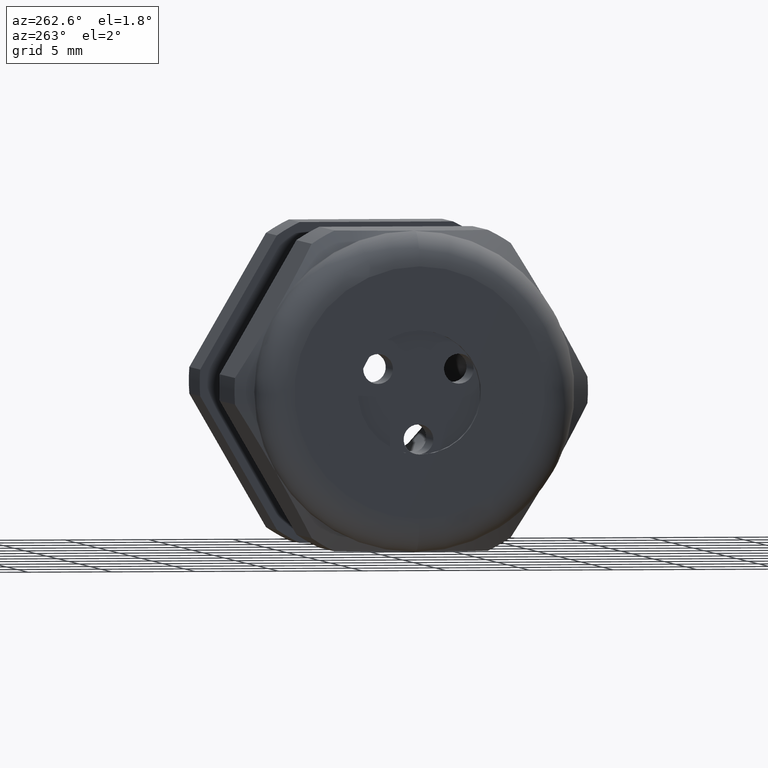
[diagram: clean part render]
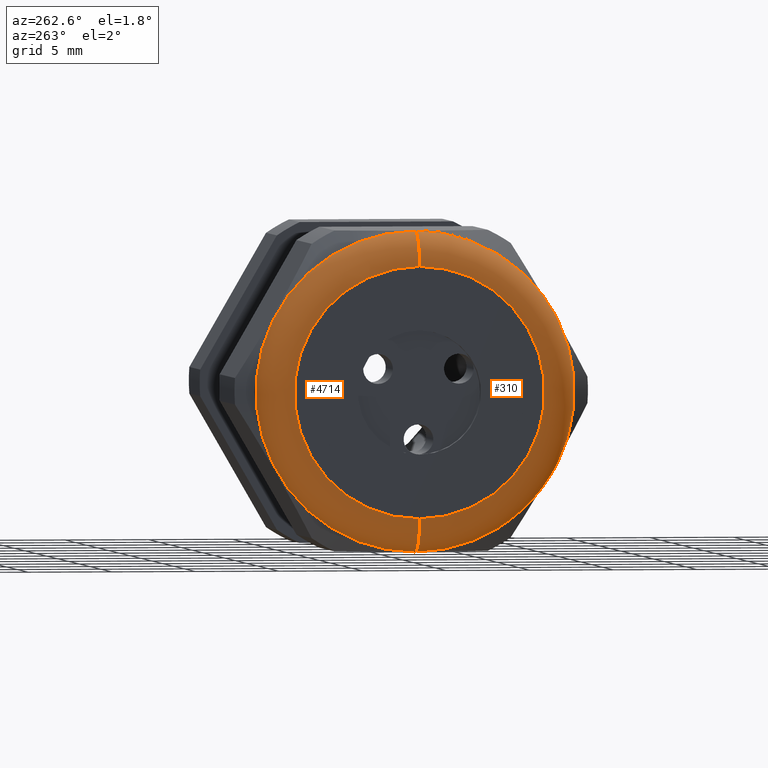
[diagram: same view with one multi-face feature highlighted, each face labeled with its STEP entity id]
A machine part, auxiliary view. The highlighted faces form ONE feature: a constant-radius fillet chain: 2 tangent blend faces with common blend radius 2.032 mm. The faces share edges in the B-rep.
Their STEP definitions:
[1] entity #310 (Torus):
#145 = EDGE_CURVE ( 'NONE', #4707, #4709, #1409, .T. ) ;
#162 = EDGE_CURVE ( 'NONE', #4786, #4739, #1515, .T. ) ;
#310 = ADVANCED_FACE ( 'NONE', ( #1741 ), #1740, .T. ) ;
#311 = ORIENTED_EDGE ( 'NONE', *, *, #4785, .F. ) ;
#312 = ORIENTED_EDGE ( 'NONE', *, *, #145, .F. ) ;
#313 = ORIENTED_EDGE ( 'NONE', *, *, #4750, .T. ) ;
#314 = ORIENTED_EDGE ( 'NONE', *, *, #162, .F. ) ;
#330 = EDGE_LOOP ( 'NONE', ( #311, #312, #313, #314 ) ) ;
#1409 = CIRCLE ( 'NONE', #1478, 0.3750000000000001100 ) ;
#1475 = DIRECTION ( 'NONE',  ( 0.0000000000000000000, 0.0000000000000000000, 1.000000000000000000 ) ) ;
#1476 = DIRECTION ( 'NONE',  ( 1.000000000000000000, 0.0000000000000000000, 0.0000000000000000000 ) ) ;
#1477 = CARTESIAN_POINT ( 'NONE',  ( -1.210000000000000000, 0.0000000000000000000, 0.0000000000000000000 ) ) ;
#1478 = AXIS2_PLACEMENT_3D ( 'NONE', #1477, #1476, #1475 ) ;
#1511 = DIRECTION ( 'NONE',  ( 0.0000000000000000000, 0.0000000000000000000, 1.000000000000000000 ) ) ;
#1512 = DIRECTION ( 'NONE',  ( -1.000000000000000000, 0.0000000000000000000, 0.0000000000000000000 ) ) ;
#1513 = CARTESIAN_POINT ( 'NONE',  ( -1.289999999999999800, 0.0000000000000000000, 0.0000000000000000000 ) ) ;
#1514 = AXIS2_PLACEMENT_3D ( 'NONE', #1513, #1512, #1511 ) ;
#1515 = CIRCLE ( 'NONE', #1514, 0.2950000000000001000 ) ;
#1737 = DIRECTION ( 'NONE',  ( 0.0000000000000000000, 0.0000000000000000000, 1.000000000000000000 ) ) ;
#1738 = DIRECTION ( 'NONE',  ( -1.000000000000000000, 0.0000000000000000000, 0.0000000000000000000 ) ) ;
#1739 = AXIS2_PLACEMENT_3D ( 'NONE', #1746, #1738, #1737 ) ;
#1740 = TOROIDAL_SURFACE ( 'NONE', #1739, 0.2950000000000001000, 0.08000000000000000200 ) ;
#1741 = FACE_OUTER_BOUND ( 'NONE', #330, .T. ) ;
#1746 = CARTESIAN_POINT ( 'NONE',  ( -1.210000000000000000, 0.0000000000000000000, 0.0000000000000000000 ) ) ;
#3739 = CARTESIAN_POINT ( 'NONE',  ( -1.210000000000000000, 0.0000000000000000000, -0.3750000000000001100 ) ) ;
#3745 = CARTESIAN_POINT ( 'NONE',  ( -1.210000000000000000, 4.592425496802576100E-017, 0.3750000000000001100 ) ) ;
#3784 = DIRECTION ( 'NONE',  ( 0.0000000000000000000, 0.0000000000000000000, -1.000000000000000000 ) ) ;
#3785 = DIRECTION ( 'NONE',  ( 0.0000000000000000000, -1.000000000000000000, 0.0000000000000000000 ) ) ;
#3786 = CARTESIAN_POINT ( 'NONE',  ( -1.210000000000000000, 0.0000000000000000000, 0.2950000000000001000 ) ) ;
#3787 = AXIS2_PLACEMENT_3D ( 'NONE', #3786, #3785, #3784 ) ;
#3788 = CIRCLE ( 'NONE', #3787, 0.08000000000000000200 ) ;
#3807 = CARTESIAN_POINT ( 'NONE',  ( -1.289999999999999800, 0.0000000000000000000, 0.2950000000000001000 ) ) ;
#3847 = CARTESIAN_POINT ( 'NONE',  ( -1.289999999999999800, 4.102566777143634000E-017, -0.2950000000000001000 ) ) ;
#3848 = DIRECTION ( 'NONE',  ( 0.0000000000000000000, -1.224646799147353500E-016, 1.000000000000000000 ) ) ;
#3849 = DIRECTION ( 'NONE',  ( 0.0000000000000000000, 1.000000000000000000, 1.224646799147353200E-016 ) ) ;
#3850 = CARTESIAN_POINT ( 'NONE',  ( -1.210000000000000000, 3.612708057484693200E-017, -0.2950000000000001000 ) ) ;
#3851 = AXIS2_PLACEMENT_3D ( 'NONE', #3850, #3849, #3848 ) ;
#3852 = CIRCLE ( 'NONE', #3851, 0.08000000000000000200 ) ;
#4707 = VERTEX_POINT ( 'NONE', #3745 ) ;
#4709 = VERTEX_POINT ( 'NONE', #3739 ) ;
#4739 = VERTEX_POINT ( 'NONE', #3807 ) ;
#4750 = EDGE_CURVE ( 'NONE', #4707, #4739, #3788, .T. ) ;
#4785 = EDGE_CURVE ( 'NONE', #4709, #4786, #3852, .T. ) ;
#4786 = VERTEX_POINT ( 'NONE', #3847 ) ;
[2] entity #4714 (Torus):
#3724 = DIRECTION ( 'NONE',  ( 0.0000000000000000000, 0.0000000000000000000, 1.000000000000000000 ) ) ;
#3725 = DIRECTION ( 'NONE',  ( -1.000000000000000000, 0.0000000000000000000, 0.0000000000000000000 ) ) ;
#3726 = CARTESIAN_POINT ( 'NONE',  ( -1.210000000000000000, 0.0000000000000000000, 0.0000000000000000000 ) ) ;
#3727 = AXIS2_PLACEMENT_3D ( 'NONE', #3726, #3725, #3724 ) ;
#3728 = TOROIDAL_SURFACE ( 'NONE', #3727, 0.2950000000000001000, 0.08000000000000000200 ) ;
#3729 = FACE_OUTER_BOUND ( 'NONE', #4711, .T. ) ;
#3739 = CARTESIAN_POINT ( 'NONE',  ( -1.210000000000000000, 0.0000000000000000000, -0.3750000000000001100 ) ) ;
#3740 = DIRECTION ( 'NONE',  ( 0.0000000000000000000, 0.0000000000000000000, 1.000000000000000000 ) ) ;
#3741 = DIRECTION ( 'NONE',  ( 1.000000000000000000, 0.0000000000000000000, 0.0000000000000000000 ) ) ;
#3742 = CARTESIAN_POINT ( 'NONE',  ( -1.210000000000000000, 0.0000000000000000000, 0.0000000000000000000 ) ) ;
#3743 = AXIS2_PLACEMENT_3D ( 'NONE', #3742, #3741, #3740 ) ;
#3744 = CIRCLE ( 'NONE', #3743, 0.3750000000000001100 ) ;
#3745 = CARTESIAN_POINT ( 'NONE',  ( -1.210000000000000000, 4.592425496802576100E-017, 0.3750000000000001100 ) ) ;
#3784 = DIRECTION ( 'NONE',  ( 0.0000000000000000000, 0.0000000000000000000, -1.000000000000000000 ) ) ;
#3785 = DIRECTION ( 'NONE',  ( 0.0000000000000000000, -1.000000000000000000, 0.0000000000000000000 ) ) ;
#3786 = CARTESIAN_POINT ( 'NONE',  ( -1.210000000000000000, 0.0000000000000000000, 0.2950000000000001000 ) ) ;
#3787 = AXIS2_PLACEMENT_3D ( 'NONE', #3786, #3785, #3784 ) ;
#3788 = CIRCLE ( 'NONE', #3787, 0.08000000000000000200 ) ;
#3789 = DIRECTION ( 'NONE',  ( 0.0000000000000000000, 0.0000000000000000000, 1.000000000000000000 ) ) ;
#3790 = DIRECTION ( 'NONE',  ( -1.000000000000000000, 0.0000000000000000000, 0.0000000000000000000 ) ) ;
#3791 = CARTESIAN_POINT ( 'NONE',  ( -1.289999999999999800, 0.0000000000000000000, 0.0000000000000000000 ) ) ;
#3792 = AXIS2_PLACEMENT_3D ( 'NONE', #3791, #3790, #3789 ) ;
#3793 = CIRCLE ( 'NONE', #3792, 0.2950000000000001000 ) ;
#3807 = CARTESIAN_POINT ( 'NONE',  ( -1.289999999999999800, 0.0000000000000000000, 0.2950000000000001000 ) ) ;
#3847 = CARTESIAN_POINT ( 'NONE',  ( -1.289999999999999800, 4.102566777143634000E-017, -0.2950000000000001000 ) ) ;
#3848 = DIRECTION ( 'NONE',  ( 0.0000000000000000000, -1.224646799147353500E-016, 1.000000000000000000 ) ) ;
#3849 = DIRECTION ( 'NONE',  ( 0.0000000000000000000, 1.000000000000000000, 1.224646799147353200E-016 ) ) ;
#3850 = CARTESIAN_POINT ( 'NONE',  ( -1.210000000000000000, 3.612708057484693200E-017, -0.2950000000000001000 ) ) ;
#3851 = AXIS2_PLACEMENT_3D ( 'NONE', #3850, #3849, #3848 ) ;
#3852 = CIRCLE ( 'NONE', #3851, 0.08000000000000000200 ) ;
#4706 = ORIENTED_EDGE ( 'NONE', *, *, #4708, .F. ) ;
#4707 = VERTEX_POINT ( 'NONE', #3745 ) ;
#4708 = EDGE_CURVE ( 'NONE', #4709, #4707, #3744, .T. ) ;
#4709 = VERTEX_POINT ( 'NONE', #3739 ) ;
#4711 = EDGE_LOOP ( 'NONE', ( #4706, #4783, #4787, #4741 ) ) ;
#4714 = ADVANCED_FACE ( 'NONE', ( #3729 ), #3728, .T. ) ;
#4739 = VERTEX_POINT ( 'NONE', #3807 ) ;
#4741 = ORIENTED_EDGE ( 'NONE', *, *, #4750, .F. ) ;
#4749 = EDGE_CURVE ( 'NONE', #4739, #4786, #3793, .T. ) ;
#4750 = EDGE_CURVE ( 'NONE', #4707, #4739, #3788, .T. ) ;
#4783 = ORIENTED_EDGE ( 'NONE', *, *, #4785, .T. ) ;
#4785 = EDGE_CURVE ( 'NONE', #4709, #4786, #3852, .T. ) ;
#4786 = VERTEX_POINT ( 'NONE', #3847 ) ;
#4787 = ORIENTED_EDGE ( 'NONE', *, *, #4749, .F. ) ;